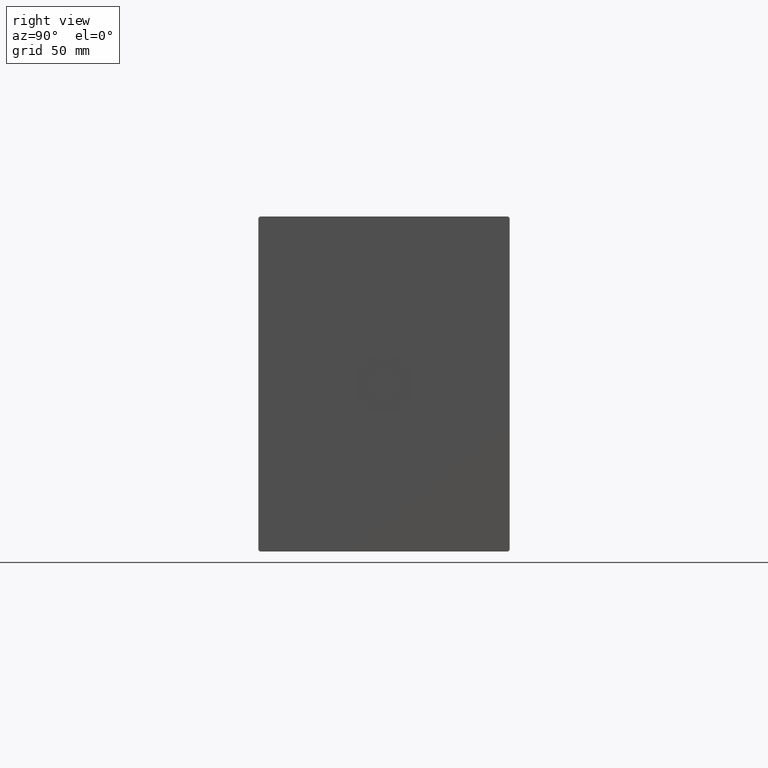
[diagram: clean part render]
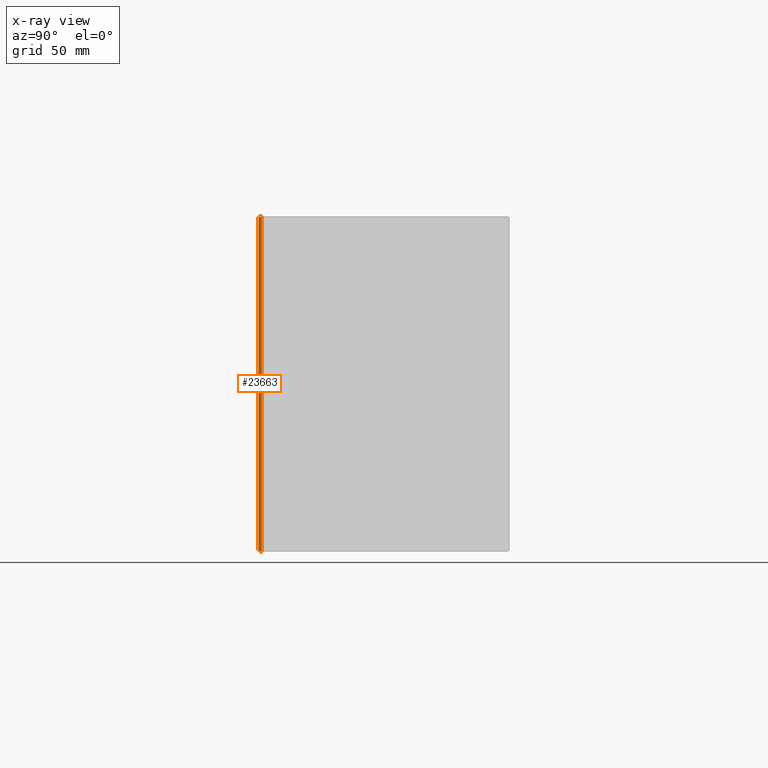
[diagram: x-ray — body ghosted, one internal face saturated and labeled with its STEP entity id]
A machine part, right view, then the same camera in x-ray: the body is ghosted and one INTERNAL B-rep face — a face not visible from any outside direction — is saturated and labeled: STEP entity #23663.
In plain terms, the highlighted planar face has unit normal (1, -0, 0).
Its self-contained STEP definition (entity closure, byte-faithful):
#191 = DIRECTION ( 'NONE',  ( 1.962615573354719143E-16, -0.7071067811865474617, -0.7071067811865474617 ) ) ;
#741 = VERTEX_POINT ( 'NONE', #33306 ) ;
#830 = LINE ( 'NONE', #29401, #19632 ) ;
#1270 = AXIS2_PLACEMENT_3D ( 'NONE', #27985, #11358, #37359 ) ;
#3742 = VERTEX_POINT ( 'NONE', #21203 ) ;
#4097 = VERTEX_POINT ( 'NONE', #12178 ) ;
#4267 = ORIENTED_EDGE ( 'NONE', *, *, #10425, .F. ) ;
#5801 = VERTEX_POINT ( 'NONE', #39216 ) ;
#7317 = LINE ( 'NONE', #29914, #24024 ) ;
#7573 = ORIENTED_EDGE ( 'NONE', *, *, #36213, .F. ) ;
#8068 = ORIENTED_EDGE ( 'NONE', *, *, #41987, .T. ) ;
#8587 = LINE ( 'NONE', #34373, #29426 ) ;
#10425 = EDGE_CURVE ( 'NONE', #741, #13436, #7317, .T. ) ;
#10648 = CARTESIAN_POINT ( 'NONE',  ( 89.00000000000000000, -72.99999999999998579, 99.99999999999994316 ) ) ;
#10947 = FACE_OUTER_BOUND ( 'NONE', #37061, .T. ) ;
#11358 = DIRECTION ( 'NONE',  ( 1.000000000000000000, -1.528515828878758931E-32, 2.775557561562891844E-16 ) ) ;
#12163 = DIRECTION ( 'NONE',  ( -0.000000000000000000, -1.000000000000000000, -5.507058653894625237E-17 ) ) ;
#12178 = CARTESIAN_POINT ( 'NONE',  ( 89.00000000000005684, -72.99999999999998579, -100.0000000000000426 ) ) ;
#13257 = VERTEX_POINT ( 'NONE', #10648 ) ;
#13436 = VERTEX_POINT ( 'NONE', #38315 ) ;
#15150 = LINE ( 'NONE', #28967, #28488 ) ;
#17970 = PLANE ( 'NONE',  #1270 ) ;
#19538 = ORIENTED_EDGE ( 'NONE', *, *, #42142, .T. ) ;
#19632 = VECTOR ( 'NONE', #191, 1000.000000000000114 ) ;
#21203 = CARTESIAN_POINT ( 'NONE',  ( 89.00000000000000000, -74.00000000000000000, 99.99999999999994316 ) ) ;
#22831 = CARTESIAN_POINT ( 'NONE',  ( 89.00000000000005684, -72.99999999999998579, -100.0000000000000426 ) ) ;
#23663 = ADVANCED_FACE ( 'NONE', ( #10947 ), #17970, .F. ) ;
#23994 = EDGE_CURVE ( 'NONE', #4097, #13257, #15150, .T. ) ;
#24024 = VECTOR ( 'NONE', #26716, 1000.000000000000114 ) ;
#24243 = EDGE_CURVE ( 'NONE', #3742, #5801, #830, .T. ) ;
#24685 = VECTOR ( 'NONE', #29023, 1000.000000000000000 ) ;
#25376 = LINE ( 'NONE', #38563, #30109 ) ;
#25600 = ORIENTED_EDGE ( 'NONE', *, *, #23994, .F. ) ;
#26716 = DIRECTION ( 'NONE',  ( 1.962615573354719143E-16, 0.7071067811865474617, -0.7071067811865474617 ) ) ;
#27985 = CARTESIAN_POINT ( 'NONE',  ( 89.00000000000000000, -72.99999999999998579, 99.99999999999994316 ) ) ;
#28488 = VECTOR ( 'NONE', #41322, 1000.000000000000000 ) ;
#28819 = LINE ( 'NONE', #22831, #24685 ) ;
#28967 = CARTESIAN_POINT ( 'NONE',  ( 89.00000000000000000, -72.99999999999998579, 99.99999999999994316 ) ) ;
#29023 = DIRECTION ( 'NONE',  ( -0.000000000000000000, -1.000000000000000000, -5.507058653894625237E-17 ) ) ;
#29401 = CARTESIAN_POINT ( 'NONE',  ( 88.99999999999997158, -74.00000000000004263, 99.99999999999991473 ) ) ;
#29426 = VECTOR ( 'NONE', #40976, 1000.000000000000000 ) ;
#29914 = CARTESIAN_POINT ( 'NONE',  ( 89.00000000000002842, -74.99999999999992895, -99.00000000000009948 ) ) ;
#30109 = VECTOR ( 'NONE', #12163, 1000.000000000000000 ) ;
#32930 = ORIENTED_EDGE ( 'NONE', *, *, #24243, .F. ) ;
#33306 = CARTESIAN_POINT ( 'NONE',  ( 89.00000000000005684, -74.99999999999998579, -99.00000000000001421 ) ) ;
#34373 = CARTESIAN_POINT ( 'NONE',  ( 89.00000000000000000, -74.99999999999998579, 99.99999999999994316 ) ) ;
#36213 = EDGE_CURVE ( 'NONE', #13257, #3742, #25376, .T. ) ;
#37061 = EDGE_LOOP ( 'NONE', ( #7573, #25600, #19538, #4267, #8068, #32930 ) ) ;
#37359 = DIRECTION ( 'NONE',  ( 2.775557561562891844E-16, 0.000000000000000000, -1.000000000000000000 ) ) ;
#38315 = CARTESIAN_POINT ( 'NONE',  ( 89.00000000000005684, -73.99999999999998579, -100.0000000000000426 ) ) ;
#38563 = CARTESIAN_POINT ( 'NONE',  ( 89.00000000000000000, -72.99999999999998579, 99.99999999999994316 ) ) ;
#39216 = CARTESIAN_POINT ( 'NONE',  ( 89.00000000000000000, -74.99999999999998579, 98.99999999999995737 ) ) ;
#40976 = DIRECTION ( 'NONE',  ( -2.775557561562891844E-16, -0.000000000000000000, 1.000000000000000000 ) ) ;
#41322 = DIRECTION ( 'NONE',  ( -2.775557561562891844E-16, -0.000000000000000000, 1.000000000000000000 ) ) ;
#41987 = EDGE_CURVE ( 'NONE', #741, #5801, #8587, .T. ) ;
#42142 = EDGE_CURVE ( 'NONE', #4097, #13436, #28819, .T. ) ;